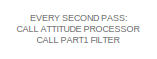
[diagram: root canvas - part 1/4, top left region]
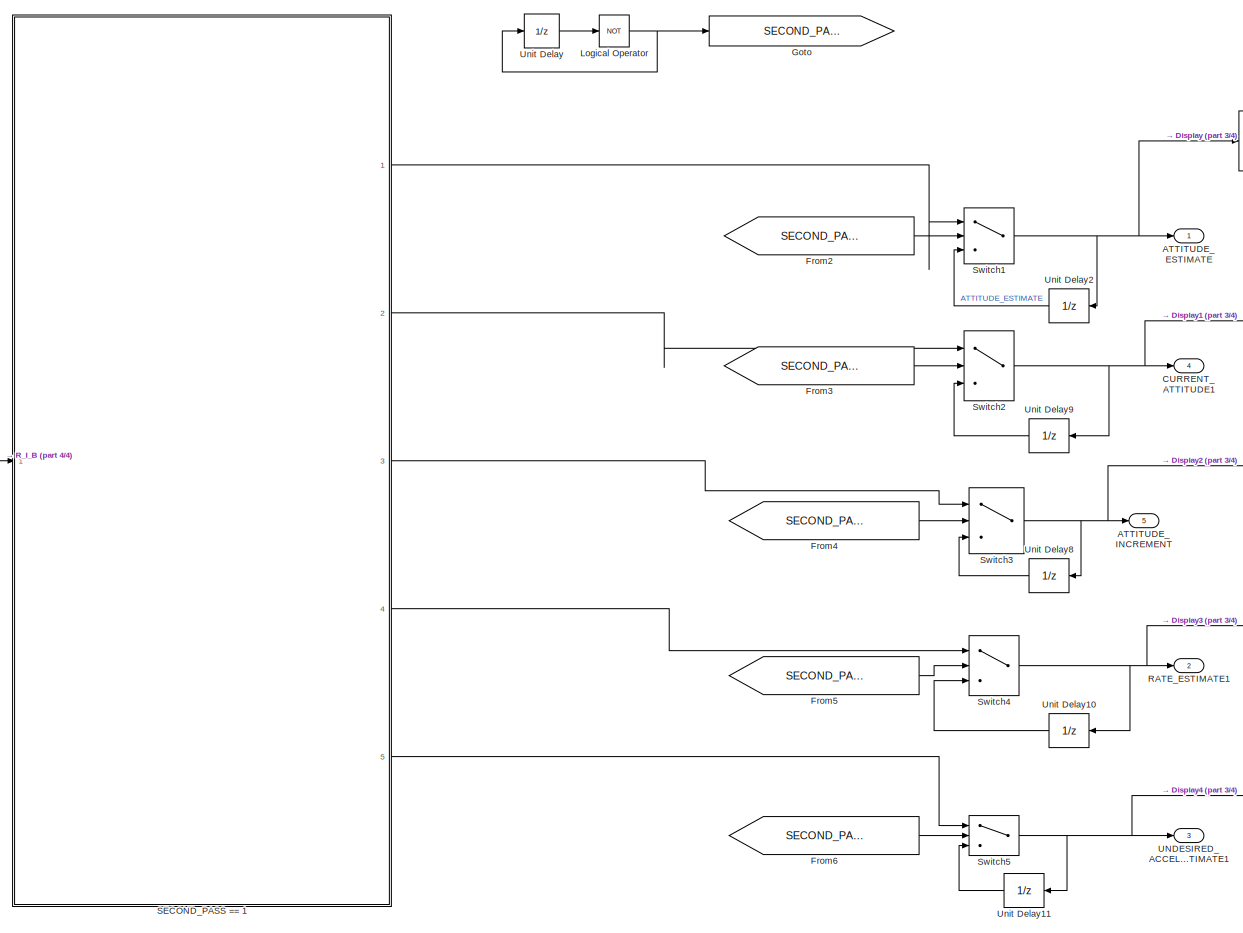
[diagram: root canvas - part 2/4, most of the canvas]
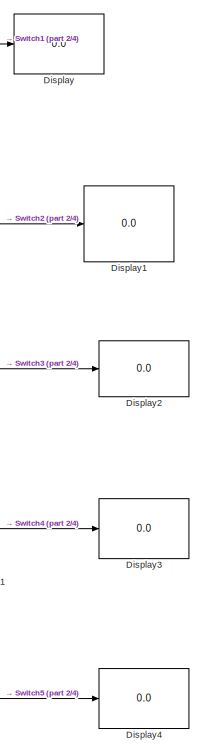
[diagram: root canvas - part 3/4, middle right region]
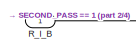
[diagram: root canvas - part 4/4, middle left region]
MODEL slx_37dfc1037beb
KIND model
CONFIG AbsTol = auto
CONFIG EnableMultiTasking = off
CONFIG FixedStep = 0.08
CONFIG MaxStep = auto
CONFIG MinStep = auto
CONFIG RelTol = 1e-3
CONFIG SampleTimeConstraint = Unconstrained
CONFIG Solver = FixedStepAuto
CONFIG SolverName = FixedStepAuto
CONFIG StartTime = 0.0
CONFIG StopTime = 10.0
BLOCK [Outport] ATTITUDE_ESTIMATE
  IconDisplay = Port number
BLOCK [Outport] ATTITUDE_INCREMENT
  IconDisplay = Port number
  Port = 5
BLOCK [Outport] CURRENT_ATTITUDE1
  IconDisplay = Port number
  Port = 4
BLOCK [Display] Display
  Decimation = 1
  Ports = [1]
BLOCK [Display] Display1
  Decimation = 1
  Ports = [1]
BLOCK [Display] Display2
  Decimation = 1
  Ports = [1]
BLOCK [Display] Display3
  Decimation = 1
  Ports = [1]
BLOCK [Display] Display4
  Decimation = 1
  Ports = [1]
BLOCK [From] From2
  GotoTag = SECOND_PASS
BLOCK [From] From3
  GotoTag = SECOND_PASS
BLOCK [From] From4
  GotoTag = SECOND_PASS
BLOCK [From] From5
  GotoTag = SECOND_PASS
BLOCK [From] From6
  GotoTag = SECOND_PASS
BLOCK [Goto] Goto
  GotoTag = SECOND_PASS
BLOCK [Logic] Logical Operator
  AllPortsSameDT = off
  Inputs = 1
  Operator = NOT
  OutDataTypeStr = boolean
  Ports = [1, 1]
BLOCK [Outport] RATE_ESTIMATE1
  IconDisplay = Port number
  Port = 2
BLOCK [Inport] R_I_B
  IconDisplay = Port number
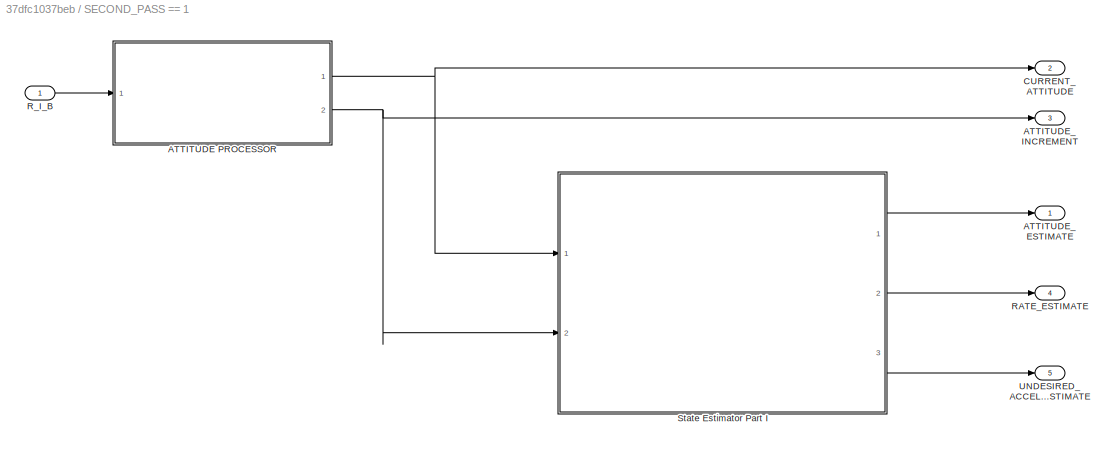
BLOCK [SubSystem] SECOND_PASS == 1
  Ports = [1, 5]
  RequestExecContextInheritance = off
  TreatAsAtomicUnit = on
  Variant = off
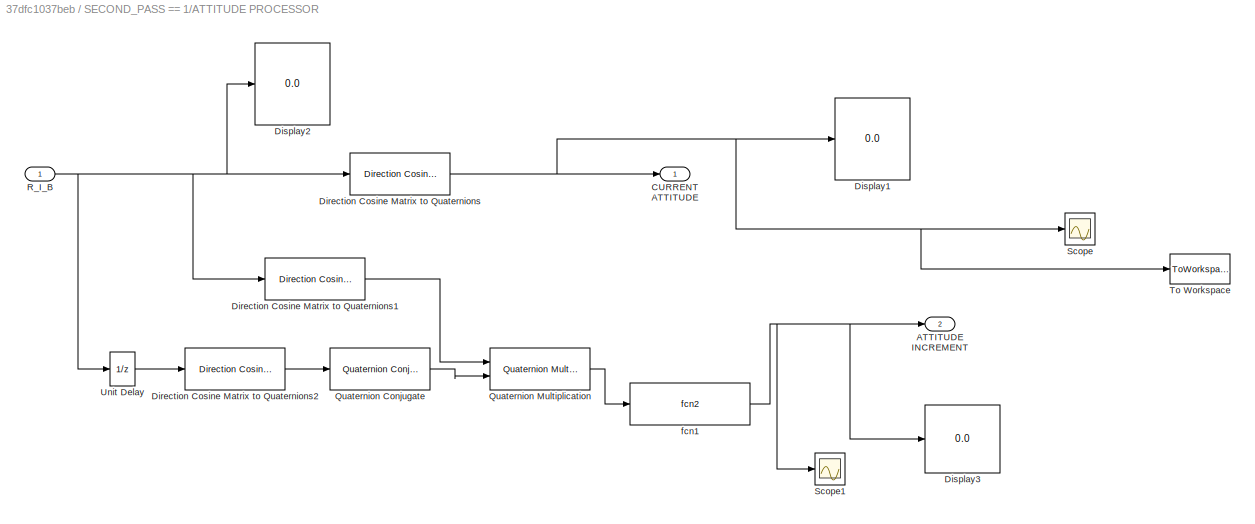
BLOCK [SubSystem] SECOND_PASS == 1/ATTITUDE PROCESSOR
  Ports = [1, 2]
  RequestExecContextInheritance = off
  Variant = off
BLOCK [Outport] SECOND_PASS == 1/ATTITUDE PROCESSOR/ATTITUDE INCREMENT
  IconDisplay = Port number
  Port = 2
BLOCK [Outport] SECOND_PASS == 1/ATTITUDE PROCESSOR/CURRENT ATTITUDE
  IconDisplay = Port number
BLOCK [Reference] SECOND_PASS == 1/ATTITUDE PROCESSOR/Direction Cosine Matrix to Quaternions  REF=MATLAB_Function_lib/Direction Cosine Matrix 
to Quaternions
  Ports = [1, 1]
  SourceBlock = MATLAB_Function_lib/Direction Cosine Matrix \nto Quaternions
  SourceType = SubSystem
BLOCK [Reference] SECOND_PASS == 1/ATTITUDE PROCESSOR/Direction Cosine Matrix to Quaternions1  REF=MATLAB_Function_lib/Direction Cosine Matrix 
to Quaternions
  Ports = [1, 1]
  SourceBlock = MATLAB_Function_lib/Direction Cosine Matrix \nto Quaternions
  SourceType = SubSystem
BLOCK [Reference] SECOND_PASS == 1/ATTITUDE PROCESSOR/Direction Cosine Matrix to Quaternions2  REF=MATLAB_Function_lib/Direction Cosine Matrix 
to Quaternions
  Ports = [1, 1]
  SourceBlock = MATLAB_Function_lib/Direction Cosine Matrix \nto Quaternions
  SourceType = SubSystem
BLOCK [Display] SECOND_PASS == 1/ATTITUDE PROCESSOR/Display1
  Decimation = 1
  Ports = [1]
BLOCK [Display] SECOND_PASS == 1/ATTITUDE PROCESSOR/Display2
  Decimation = 1
  Ports = [1]
BLOCK [Display] SECOND_PASS == 1/ATTITUDE PROCESSOR/Display3
  Decimation = 1
  Ports = [1]
BLOCK [Reference] SECOND_PASS == 1/ATTITUDE PROCESSOR/Quaternion Conjugate  REF=MATLAB_Function_lib/Quaternion
Conjugate
  Ports = [1, 1]
  SourceBlock = MATLAB_Function_lib/Quaternion\nConjugate
  SourceType = SubSystem
BLOCK [Reference] SECOND_PASS == 1/ATTITUDE PROCESSOR/Quaternion Multiplication  REF=MATLAB_Function_lib/Quaternion
Multiplication
  Ports = [2, 1]
  SourceBlock = MATLAB_Function_lib/Quaternion\nMultiplication
  SourceType = SubSystem
BLOCK [Inport] SECOND_PASS == 1/ATTITUDE PROCESSOR/R_I_B
  IconDisplay = Port number
BLOCK [Scope] SECOND_PASS == 1/ATTITUDE PROCESSOR/Scope
  NumInputPorts = 1
  Ports = [1]
  ScopeSpecificationString = Simulink.scopes.TimeScopeBlockCfg('CurrentConfiguration', extmgr.ConfigurationSet(extmgr.Configuration('Core','General UI',true),extmgr.Configuration('Core','Source UI',true),extmgr.Configuration('Sources','WiredSimulink',true,'DataLoggingVariableName','ScopeData1'),extmgr.Configuration('Visuals','Time Domain',true,'SerializedDisplays',{struct('MinYLimReal','-0.12545','MaxYLimReal','1.12399','YLab...<+1587ch>
BLOCK [Scope] SECOND_PASS == 1/ATTITUDE PROCESSOR/Scope1
  NumInputPorts = 1
  Ports = [1]
  ScopeSpecificationString = Simulink.scopes.TimeScopeBlockCfg('CurrentConfiguration', extmgr.ConfigurationSet(extmgr.Configuration('Core','General UI',true),extmgr.Configuration('Core','Source UI',true),extmgr.Configuration('Sources','WiredSimulink',true,'DataLoggingVariableName','ScopeData3'),extmgr.Configuration('Visuals','Time Domain',true,'SerializedDisplays',{struct('MinYLimReal','-0.00203','MaxYLimReal','0.00203','YLab...<+1439ch>
BLOCK [ToWorkspace] SECOND_PASS == 1/ATTITUDE PROCESSOR/To Workspace
  FixptAsFi = on
  MaxDataPoints = inf
  Ports = [1]
  SampleTime = -1
  Save2DSignal = 3-D array (concatenate along third dimension)
  SaveFormat = Timeseries
  VariableName = test1
BLOCK [UnitDelay] SECOND_PASS == 1/ATTITUDE PROCESSOR/Unit Delay
  InitialCondition = eye(3)
  InputProcessing = Elements as channels (sample based)
  SampleTime = -1
BLOCK [Reference] SECOND_PASS == 1/ATTITUDE PROCESSOR/fcn1  REF=MATLAB_Function_lib/fcn2
  Ports = [1, 1]
  SourceBlock = MATLAB_Function_lib/fcn2
  SourceType = SubSystem
BLOCK [Outport] SECOND_PASS == 1/ATTITUDE_ESTIMATE
  IconDisplay = Port number
BLOCK [Outport] SECOND_PASS == 1/ATTITUDE_INCREMENT
  IconDisplay = Port number
  Port = 3
BLOCK [Outport] SECOND_PASS == 1/CURRENT_ATTITUDE
  IconDisplay = Port number
  Port = 2
BLOCK [Outport] SECOND_PASS == 1/RATE_ESTIMATE
  IconDisplay = Port number
  Port = 4
BLOCK [Inport] SECOND_PASS == 1/R_I_B
  IconDisplay = Port number
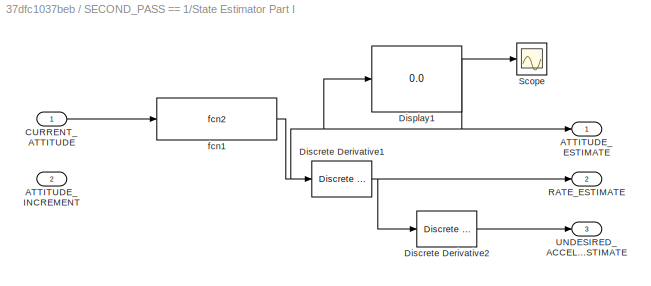
BLOCK [SubSystem] SECOND_PASS == 1/State Estimator Part I
  Ports = [2, 3]
  RequestExecContextInheritance = off
  Variant = off
BLOCK [Outport] SECOND_PASS == 1/State Estimator Part I/ATTITUDE_ESTIMATE
  IconDisplay = Port number
BLOCK [Inport] SECOND_PASS == 1/State Estimator Part I/ATTITUDE_INCREMENT
  IconDisplay = Port number
  Port = 2
BLOCK [Inport] SECOND_PASS == 1/State Estimator Part I/CURRENT_ATTITUDE
  IconDisplay = Port number
BLOCK [Reference] SECOND_PASS == 1/State Estimator Part I/Discrete Derivative1  REF=simulink/Discrete/Discrete Derivative
  Ports = [1, 1]
  SourceBlock = simulink/Discrete/Discrete Derivative
  SourceProductBaseCode = SL
  SourceProductName = Simulink
  SourceType = Discrete Derivative
BLOCK [Reference] SECOND_PASS == 1/State Estimator Part I/Discrete Derivative2  REF=simulink/Discrete/Discrete Derivative
  Ports = [1, 1]
  SourceBlock = simulink/Discrete/Discrete Derivative
  SourceProductBaseCode = SL
  SourceProductName = Simulink
  SourceType = Discrete Derivative
BLOCK [Display] SECOND_PASS == 1/State Estimator Part I/Display1
  Decimation = 1
  Ports = [1]
BLOCK [Outport] SECOND_PASS == 1/State Estimator Part I/RATE_ESTIMATE
  IconDisplay = Port number
  Port = 2
BLOCK [Scope] SECOND_PASS == 1/State Estimator Part I/Scope
  NumInputPorts = 1
  Ports = [1]
  ScopeSpecificationString = Simulink.scopes.TimeScopeBlockCfg('CurrentConfiguration', extmgr.ConfigurationSet(extmgr.Configuration('Core','General UI',true),extmgr.Configuration('Core','Source UI',true),extmgr.Configuration('Sources','WiredSimulink',true,'DataLoggingVariableName','ScopeData1'),extmgr.Configuration('Visuals','Time Domain',true,'SerializedDisplays',{struct('MinYLimReal','-1.4319','MaxYLimReal','0.21897','YLabe...<+1379ch>
BLOCK [Outport] SECOND_PASS == 1/State Estimator Part I/UNDESIRED_ACCELERATION_ESTIMATE
  IconDisplay = Port number
  Port = 3
BLOCK [Reference] SECOND_PASS == 1/State Estimator Part I/fcn1  REF=MATLAB_Function_lib/fcn2
  Ports = [1, 1]
  SourceBlock = MATLAB_Function_lib/fcn2
  SourceType = SubSystem
BLOCK [Outport] SECOND_PASS == 1/UNDESIRED_ACCELERATION_ESTIMATE
  IconDisplay = Port number
  Port = 5
BLOCK [Switch] Switch1
  Criteria = u2 ~= 0
  InputSameDT = off
  SaturateOnIntegerOverflow = off
BLOCK [Switch] Switch2
  Criteria = u2 ~= 0
  InputSameDT = off
  SaturateOnIntegerOverflow = off
BLOCK [Switch] Switch3
  Criteria = u2 ~= 0
  InputSameDT = off
  SaturateOnIntegerOverflow = off
BLOCK [Switch] Switch4
  Criteria = u2 ~= 0
  InputSameDT = off
  SaturateOnIntegerOverflow = off
BLOCK [Switch] Switch5
  Criteria = u2 ~= 0
  InputSameDT = off
  SaturateOnIntegerOverflow = off
BLOCK [Outport] UNDESIRED_ACCELERATION_ESTIMATE1
  IconDisplay = Port number
  Port = 3
BLOCK [UnitDelay] Unit Delay
  InitialCondition = false
  InputProcessing = Elements as channels (sample based)
  SampleTime = -1
BLOCK [UnitDelay] Unit Delay10
  InitialCondition = [-13.09;0;0]
  InputProcessing = Elements as channels (sample based)
  SampleTime = -1
BLOCK [UnitDelay] Unit Delay11
  InitialCondition = [-163.6;0;0]
  InputProcessing = Elements as channels (sample based)
  SampleTime = -1
BLOCK [UnitDelay] Unit Delay2
  InitialCondition = [-1;0;0]
  InputProcessing = Elements as channels (sample based)
  SampleTime = -1
BLOCK [UnitDelay] Unit Delay8
  InitialCondition = [-1;0;0]
  InputProcessing = Elements as channels (sample based)
  SampleTime = -1
BLOCK [UnitDelay] Unit Delay9
  InitialCondition = [0;0.5;0;0]
  InputProcessing = Elements as channels (sample based)
  SampleTime = -1
ANNOTATION (root): EVERY SECOND PASS: CALL ATTITUDE PROCESSOR CALL PART1 FILTER
LINE From2:1 -> Switch1:2
LINE From3:1 -> Switch2:2
LINE From4:1 -> Switch3:2
LINE From5:1 -> Switch4:2
LINE From6:1 -> Switch5:2
NET Logical Operator:1 -> Goto:1, Unit Delay:1
LINE R_I_B:1 -> SECOND_PASS == 1:1
LINE SECOND_PASS == 1/ATTITUDE PROCESSOR/Direction Cosine Matrix to Quaternions1:1 -> SECOND_PASS == 1/ATTITUDE PROCESSOR/Quaternion Multiplication:1
LINE SECOND_PASS == 1/ATTITUDE PROCESSOR/Direction Cosine Matrix to Quaternions2:1 -> SECOND_PASS == 1/ATTITUDE PROCESSOR/Quaternion Conjugate:1
NET SECOND_PASS == 1/ATTITUDE PROCESSOR/Direction Cosine Matrix to Quaternions:1 -> SECOND_PASS == 1/ATTITUDE PROCESSOR/CURRENT ATTITUDE:1, SECOND_PASS == 1/ATTITUDE PROCESSOR/Display1:1, SECOND_PASS == 1/ATTITUDE PROCESSOR/Scope:1, SECOND_PASS == 1/ATTITUDE PROCESSOR/To Workspace:1
LINE SECOND_PASS == 1/ATTITUDE PROCESSOR/Quaternion Conjugate:1 -> SECOND_PASS == 1/ATTITUDE PROCESSOR/Quaternion Multiplication:2
LINE SECOND_PASS == 1/ATTITUDE PROCESSOR/Quaternion Multiplication:1 -> SECOND_PASS == 1/ATTITUDE PROCESSOR/fcn1:1
NET SECOND_PASS == 1/ATTITUDE PROCESSOR/R_I_B:1 -> SECOND_PASS == 1/ATTITUDE PROCESSOR/Direction Cosine Matrix to Quaternions1:1, SECOND_PASS == 1/ATTITUDE PROCESSOR/Direction Cosine Matrix to Quaternions:1, SECOND_PASS == 1/ATTITUDE PROCESSOR/Display2:1, SECOND_PASS == 1/ATTITUDE PROCESSOR/Unit Delay:1
LINE SECOND_PASS == 1/ATTITUDE PROCESSOR/Unit Delay:1 -> SECOND_PASS == 1/ATTITUDE PROCESSOR/Direction Cosine Matrix to Quaternions2:1
NET SECOND_PASS == 1/ATTITUDE PROCESSOR/fcn1:1 -> SECOND_PASS == 1/ATTITUDE PROCESSOR/ATTITUDE INCREMENT:1, SECOND_PASS == 1/ATTITUDE PROCESSOR/Display3:1, SECOND_PASS == 1/ATTITUDE PROCESSOR/Scope1:1
NET SECOND_PASS == 1/ATTITUDE PROCESSOR:1 -> SECOND_PASS == 1/CURRENT_ATTITUDE:1, SECOND_PASS == 1/State Estimator Part I:1
NET SECOND_PASS == 1/ATTITUDE PROCESSOR:2 -> SECOND_PASS == 1/ATTITUDE_INCREMENT:1, SECOND_PASS == 1/State Estimator Part I:2
LINE SECOND_PASS == 1/R_I_B:1 -> SECOND_PASS == 1/ATTITUDE PROCESSOR:1
LINE SECOND_PASS == 1/State Estimator Part I/CURRENT_ATTITUDE:1 -> SECOND_PASS == 1/State Estimator Part I/fcn1:1
NET SECOND_PASS == 1/State Estimator Part I/Discrete Derivative1:1 -> SECOND_PASS == 1/State Estimator Part I/Discrete Derivative2:1, SECOND_PASS == 1/State Estimator Part I/RATE_ESTIMATE:1
LINE SECOND_PASS == 1/State Estimator Part I/Discrete Derivative2:1 -> SECOND_PASS == 1/State Estimator Part I/UNDESIRED_ACCELERATION_ESTIMATE:1
NET SECOND_PASS == 1/State Estimator Part I/fcn1:1 -> SECOND_PASS == 1/State Estimator Part I/ATTITUDE_ESTIMATE:1, SECOND_PASS == 1/State Estimator Part I/Discrete Derivative1:1, SECOND_PASS == 1/State Estimator Part I/Display1:1, SECOND_PASS == 1/State Estimator Part I/Scope:1
LINE SECOND_PASS == 1/State Estimator Part I:1 -> SECOND_PASS == 1/ATTITUDE_ESTIMATE:1
LINE SECOND_PASS == 1/State Estimator Part I:2 -> SECOND_PASS == 1/RATE_ESTIMATE:1
LINE SECOND_PASS == 1/State Estimator Part I:3 -> SECOND_PASS == 1/UNDESIRED_ACCELERATION_ESTIMATE:1
LINE SECOND_PASS == 1:1 -> Switch1:1
LINE SECOND_PASS == 1:2 -> Switch2:1
LINE SECOND_PASS == 1:3 -> Switch3:1
LINE SECOND_PASS == 1:4 -> Switch4:1
LINE SECOND_PASS == 1:5 -> Switch5:1
NET Switch1:1 -> ATTITUDE_ESTIMATE:1, Display:1, Unit Delay2:1
NET Switch2:1 -> CURRENT_ATTITUDE1:1, Display1:1, Unit Delay9:1
NET Switch3:1 -> ATTITUDE_INCREMENT:1, Display2:1, Unit Delay8:1
NET Switch4:1 -> Display3:1, RATE_ESTIMATE1:1, Unit Delay10:1
NET Switch5:1 -> Display4:1, UNDESIRED_ACCELERATION_ESTIMATE1:1, Unit Delay11:1
LINE Unit Delay10:1 -> Switch4:3
LINE Unit Delay11:1 -> Switch5:3
LINE Unit Delay2:1 -> Switch1:3
LINE Unit Delay8:1 -> Switch3:3
LINE Unit Delay9:1 -> Switch2:3
LINE Unit Delay:1 -> Logical Operator:1
note: NET lines group one-source signal fan-out (src -> all destinations, sorted); 1:1 wires keep LINE
